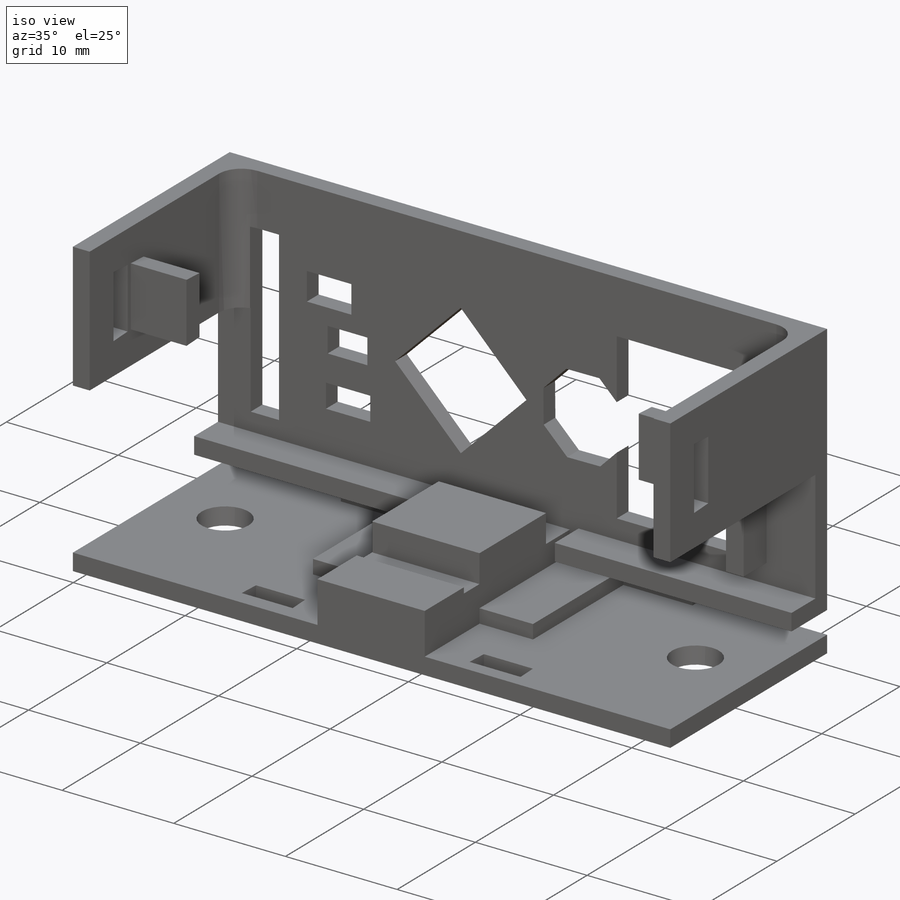
[diagram: iso view]
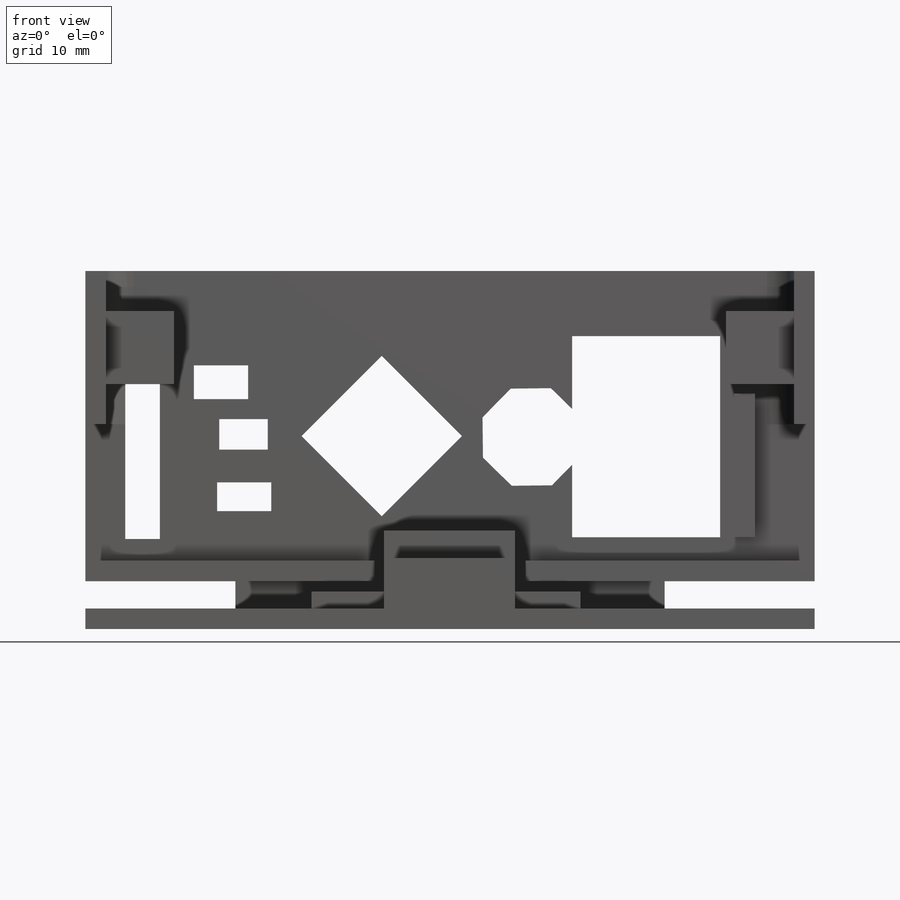
[diagram: front view]
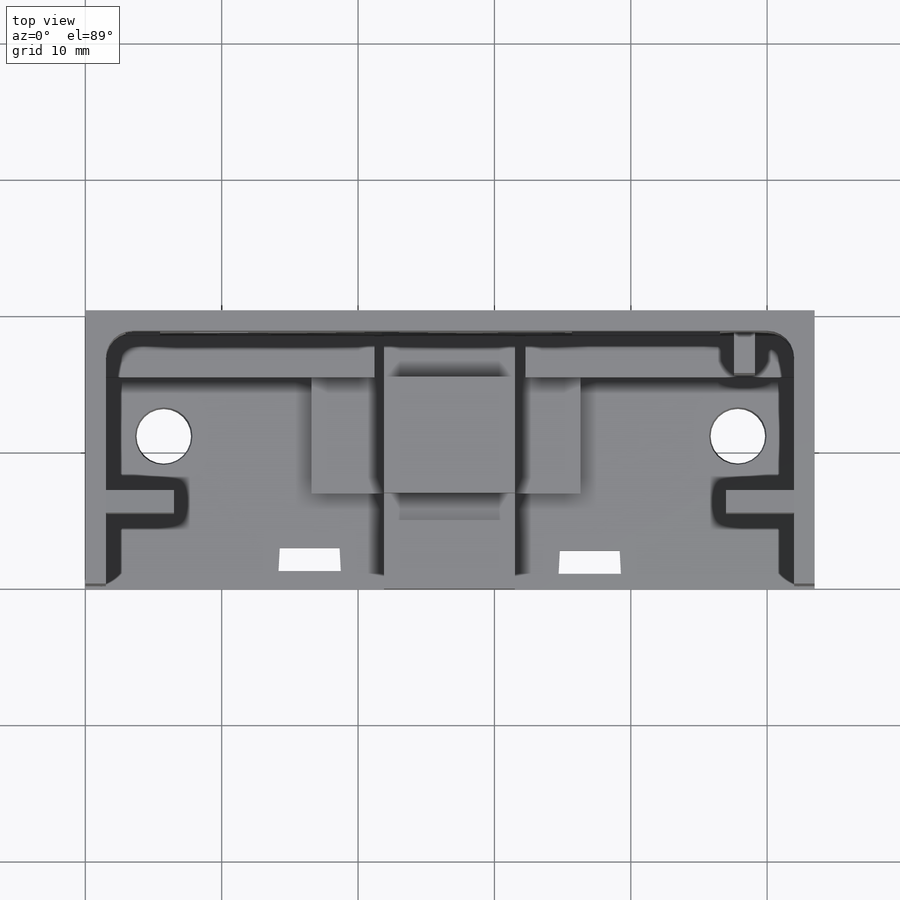
[diagram: top view]
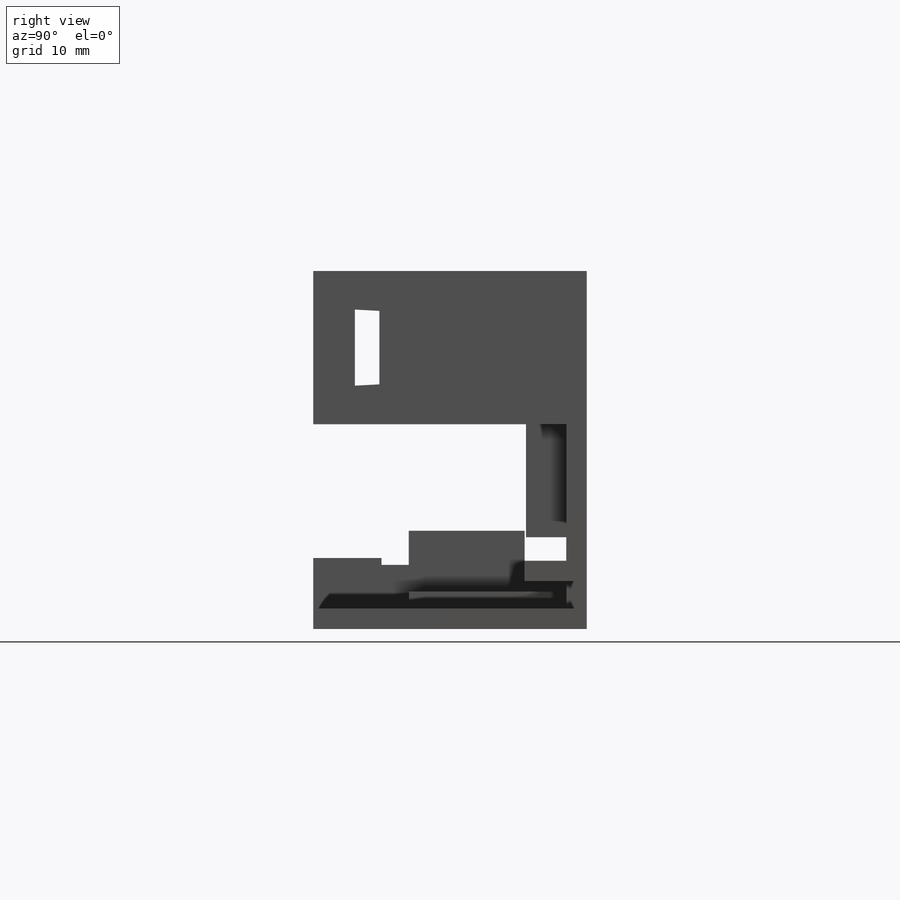
[diagram: right view]
SOLIDWORKS PART (.sldprt)
format: sldprt  version: not decoded by parser v0  size: 1,542,144 bytes
history: native  units: mm
features: sketch x18, extrude x15, hole x2, material x1, cut_extrude x1, fillet x1 (+13 scaffold rows collapsed)
feature tree (51):
  scaffold x13  (default folders/planes/origin — collapsed)
  material  "Material <not specified>"
  sketch  "Sketch1"  dims[D1=26.25mm D2=~53.48461mm]
  extrude  "Front Side - Main"  Depth=1.5mm
  sketch  "Reset Hole Sketch"
  cut_extrude  "Reset Hole"  [1 undecoded]
  sketch  "Sketch15"
  sketch  "Sketch16"  dims[D1=0.0mm]
  hole  "Microphone Hole"  [1 undecoded]
  sketch  "Sketch24"  dims[D1=1.5mm]
  extrude  "Right Side - Top"  Depth=1.5mm HeightOffset=0.1mm WidthOffset=0.2mm Clearance=5mm Gap=5mm GapHeight=0.2mm
  sketch  "Sketch26"  dims[D1=0.0mm]
  extrude  "Left Side - Top"  [1 undecoded]
  extrude  "Snap Groove - Left"  Depth=0.1mm HeightOffset=0.1mm WidthOffset=0.2mm Clearance=5mm Gap=5mm GapHeight=0.2mm
  sketch  "Sketch20"  dims[D1=1.5mm]
  extrude  "Bottom Base"  [1 undecoded]
  sketch  "Sketch18"  dims[D1=0.2mm D2=0.2mm D3=0.5mm D4=~7.567522mm]
  extrude  "Servo Seperator - Bottom"  [1 undecoded]
  sketch  "Sketch34"
  hole  "Programming Hole"  [1 undecoded]
  sketch  "Sketch38"  dims[D1=2.0mm D2=~8.189788mm]
  extrude  "Back Battery Holder - Bottom"  [1 undecoded]
  sketch  "Sketch40"  dims[c1.D1=~3.755256mm c1.D2=~3.255256mm c1.D3=~3.255256mm c1.D4=~4.497293mm c2.D3=~3.255256mm c2.D4=8.5mm c3.D3=3.5mm c3.D6=~3.755256mm c3.D1=4.0mm c4.D6=3.5mm c4.D7=4.0mm c4.D2=4.5mm c4.D3=4.5mm c4.D4=4.0mm c5.D6=4.5mm c5.D1=0.1mm c5.D5=0.0mm c5.D2=0.0mm c5.D3=4.0deg]
  sketch  "Sketch47"
  fillet  "Fillet1"  Radius=2mm
  sketch  "Sketch48"  dims[D1=0.1mm]
  extrude  "Servo Taller Seperator - Bottom"  Depth=2.5mm
  sketch  "Sketch49"  dims[D1=1.0mm]
  extrude  "Servo 2 Case Spacer - Front"  Depth=0.1mm
  sketch  "Sketch51"
  extrude  "Servo Lifters - Bottom"  [1 undecoded]
  sketch  "Sketch52"  dims[D1=0.2mm D2=1.5mm]
  extrude  "Servo Under Support"  [1 undecoded]
  sketch  "Sketch53"  dims[D1=0.2mm D2=0.4mm]
  extrude  "Servo Top Support - Right"  Depth=5mm
  sketch  "Sketch55"  dims[D1=0.0mm]
  extrude  "Servo Top Support - Left"  Depth=5mm
  extrude  "Snap Groove - Bottom Right"  Depth=0.1mm HeightOffset=0.1mm WidthOffset=0.2mm Clearance=5mm Gap=5mm GapHeight=0.2mm
  extrude  "Snap Groove - Bottom Left"  Depth=0.1mm HeightOffset=0.1mm WidthOffset=0.2mm Clearance=5mm Gap=5mm GapHeight=0.2mm
decode coverage: 23 of 37 modeling features carry decoded parameters
note: ~ marks probable driven/reference dimensions
note: 9 parameter values undecoded
summary: no parameter record found for 9 features
note: suppression state not decoded; provenance and decode notes live in map.json
